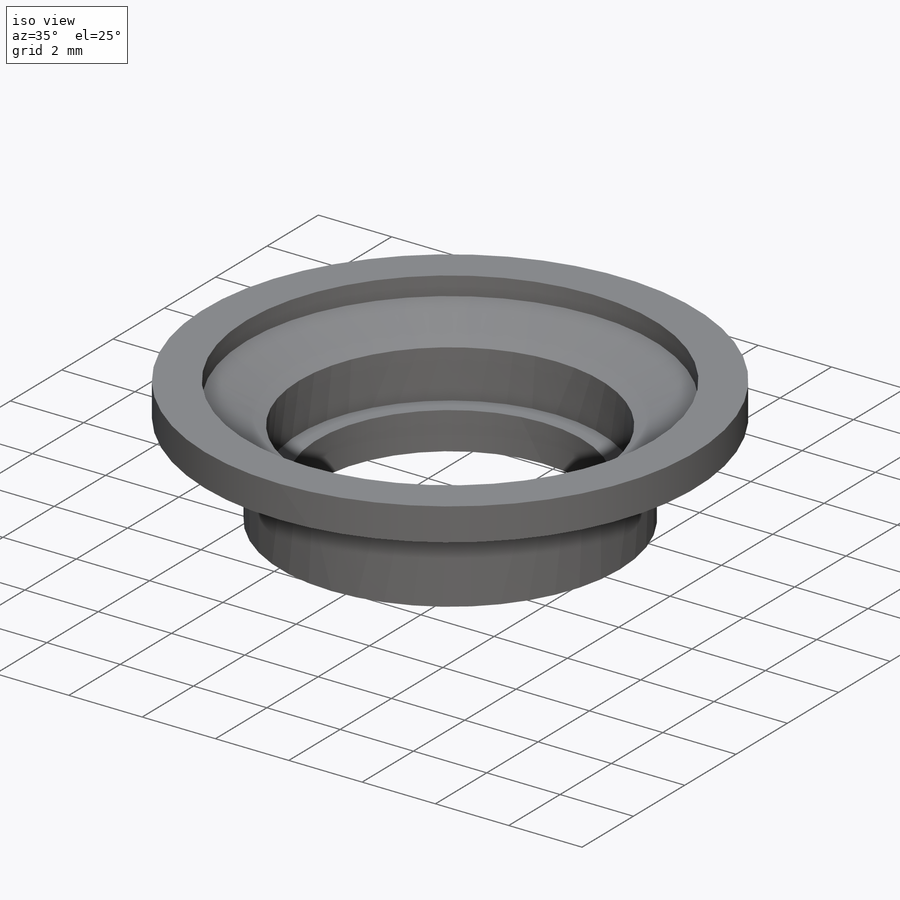
[diagram: iso view]
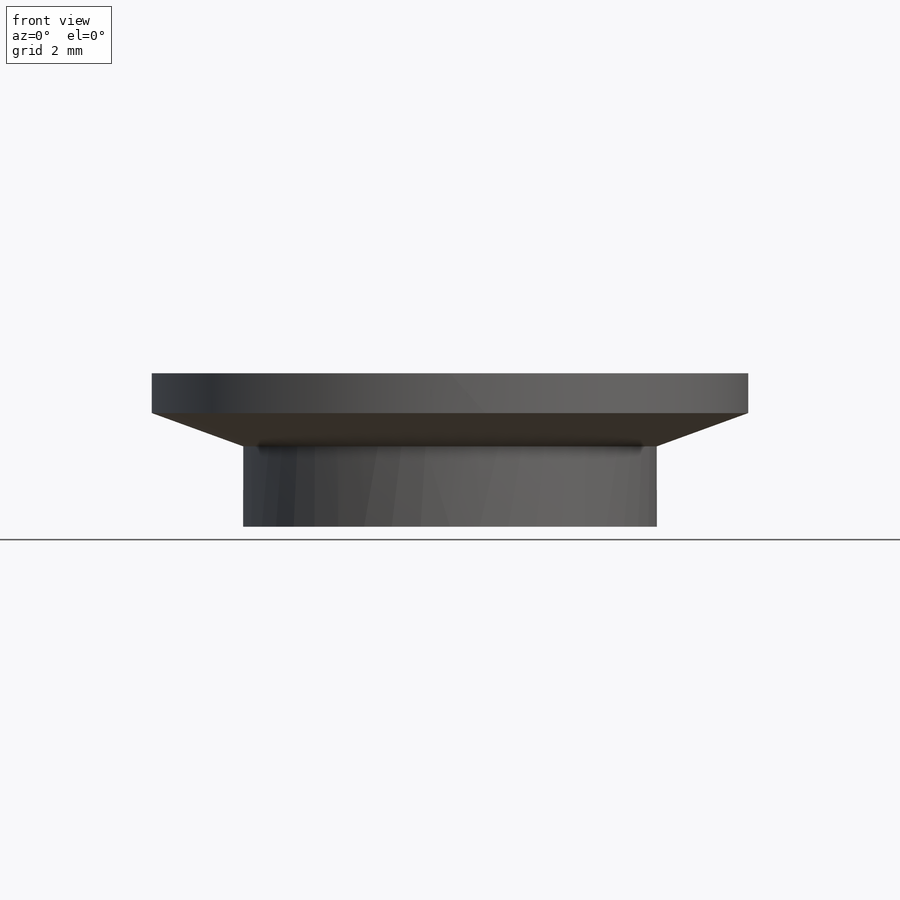
[diagram: front view]
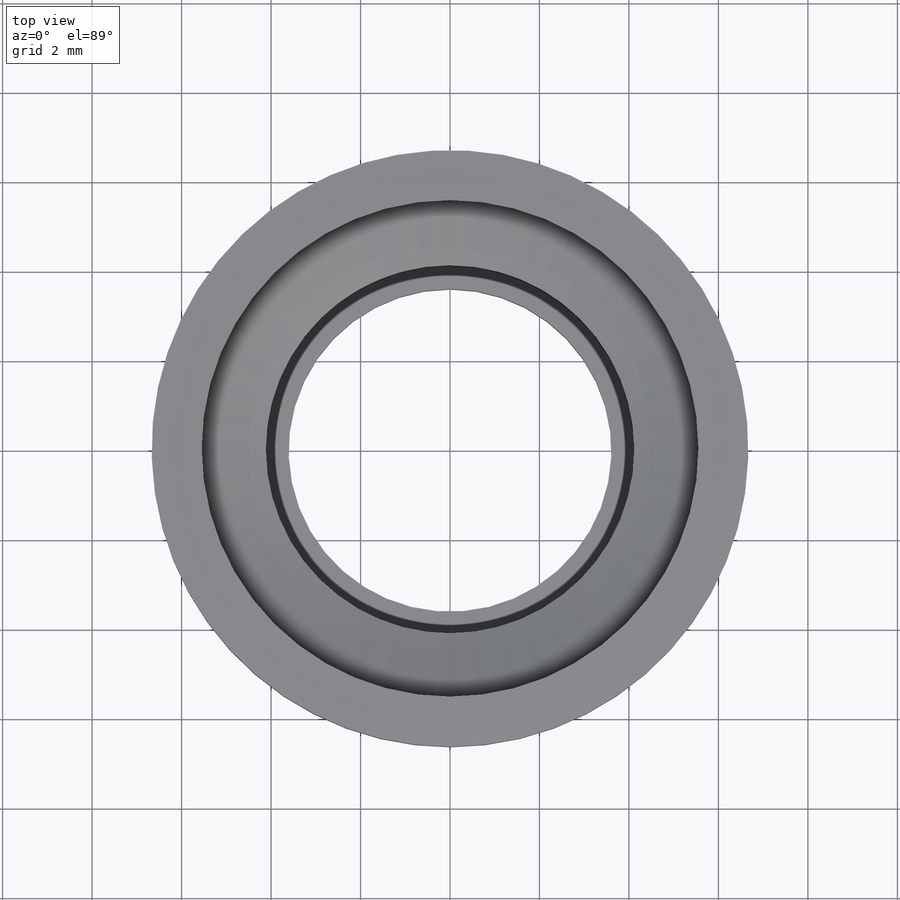
[diagram: top view]
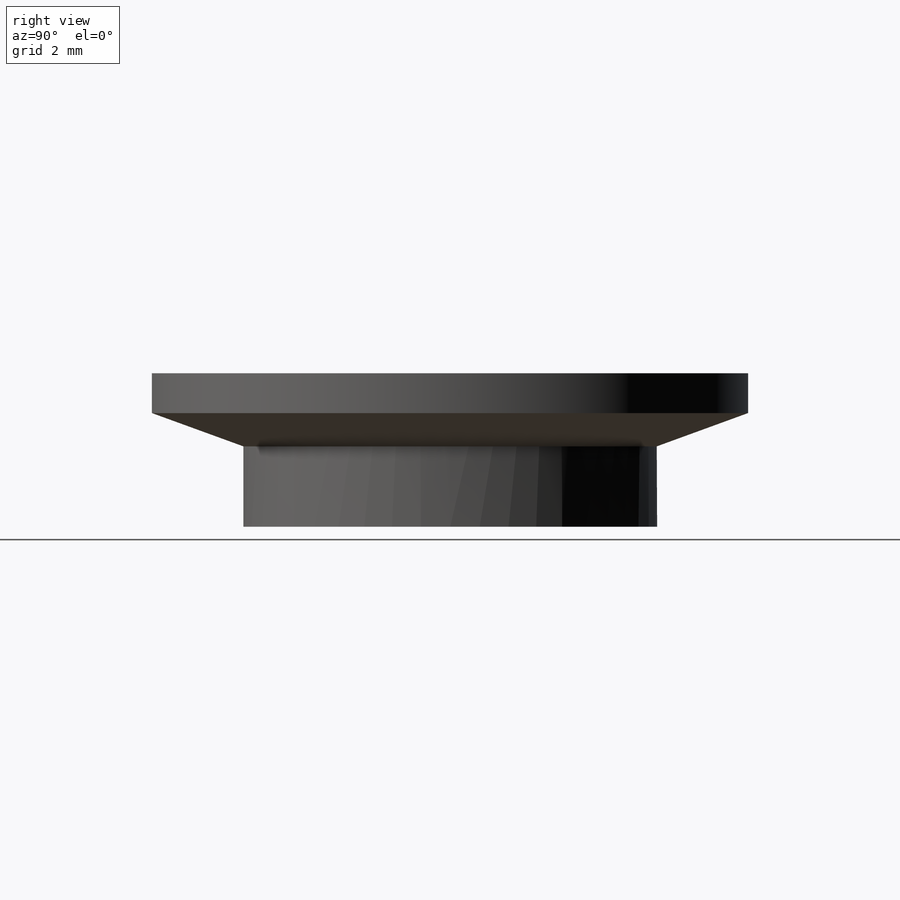
[diagram: right view]
SOLIDWORKS PART (.sldprt)
format: sldprt  version: not decoded by parser v0  size: 346,112 bytes
history: native  units: mm
features: sketch x11, cut_extrude x5, extrude x2, pattern_circular x2, material x1, revolve x1, fillet x1 (+14 scaffold rows collapsed)
feature tree (37):
  scaffold x14  (default folders/planes/origin — collapsed)
  material  "Titanium"
  sketch  "Sketch1"  dims[c1.D1=4.699mm c1.D2=13.335mm c1.D3=3.937mm c1.D4=0.889mm c2.D1=9.2456mm c2.D5=~1.916506mm c3.D5=20.0deg c3.D6=8.2296mm c3.D7=~2.285391mm c4.D7=45.0deg c4.D8=11.303mm c5.D7=~0.763492mm c6.D7=30.0deg c6.D8=11.0998mm c6.D9=0.508mm c7.D7=0.508mm c8.D7=120.0deg c9.D7=~2.023728mm c10.D7=67.5deg c10.D10=0.508mm c10.D11=1.1176mm c10.D12=2.0447mm c10.D13=~1.704406mm c11.D13=135.0deg]
  revolve  "Revolve1"  Angle=360deg
  sketch  "Sketch3"
  cut_extrude  "Extrude2"  Depth=0.508mm
  sketch  "Sketch4"  dims[D1=1.016mm]
  extrude  "Extrude4"  Depth=1.016mm
  fillet  "Fillet1"  Radius=1.27mm
  sketch  "Sketch5"  dims[D1=3.6068mm D2=2.3114mm D3=~2.467202mm D4=2.9972mm]
  sketch  "Sketch6"
  extrude  "Extrude5"  Depth=1.016mm
  sketch  "Sketch7"  dims[D1=3.048mm]
  cut_extrude  "Extrude6"  [1 undecoded]
  pattern_circular  "CirPattern1"  Count=4 Angle=360deg
  sketch  "Sketch8"
  sketch  "Sketch9"
  sketch  "Sketch10"  dims[D2=7.2136mm D1=1.016mm]
  cut_extrude  "Extrude7"  [1 undecoded]
  sketch  "Sketch12"  dims[D1=3.6576mm]
  cut_extrude  "3 Hole design Extrude8"  [1 undecoded]
  pattern_circular  "CirPattern2"  Count=3 Angle=360deg
  sketch  "Sketch14"  dims[D1=6.35mm]
  cut_extrude  "Notch 4 Vent Hole Extrude8"  [1 undecoded]
decode coverage: 14 of 22 modeling features carry decoded parameters
note: ~ marks probable driven/reference dimensions
note: 4 parameter values undecoded
summary: no parameter record found for 4 features
note: suppression state not decoded; provenance and decode notes live in map.json
